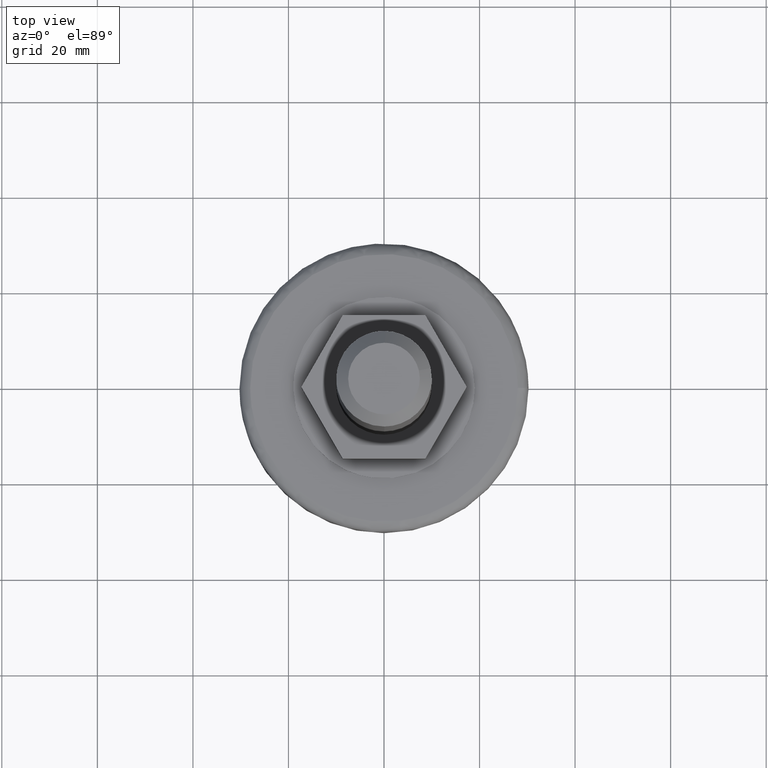
[diagram: clean part render]
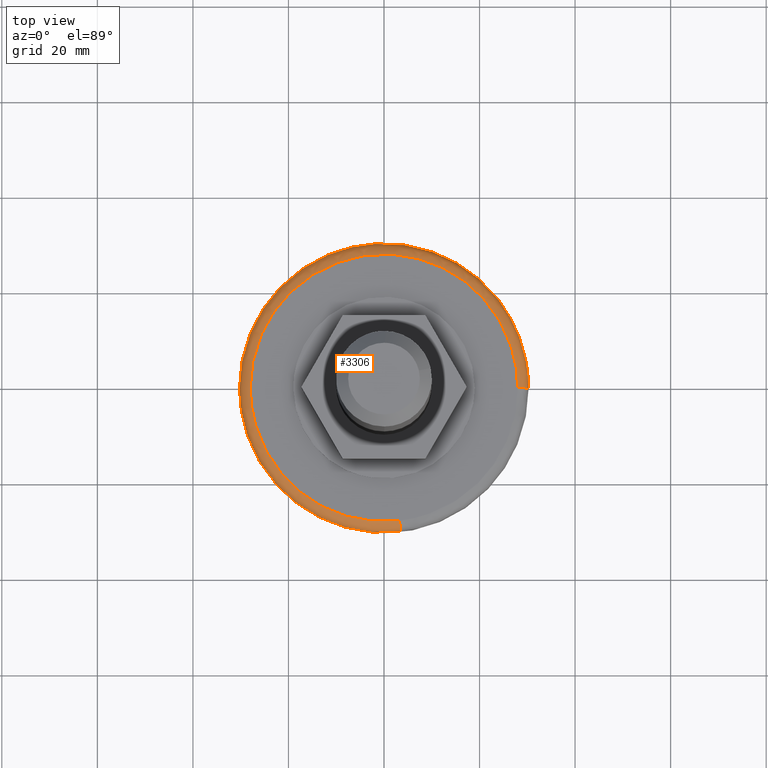
[diagram: same view with one face highlighted and labeled with its STEP entity id]
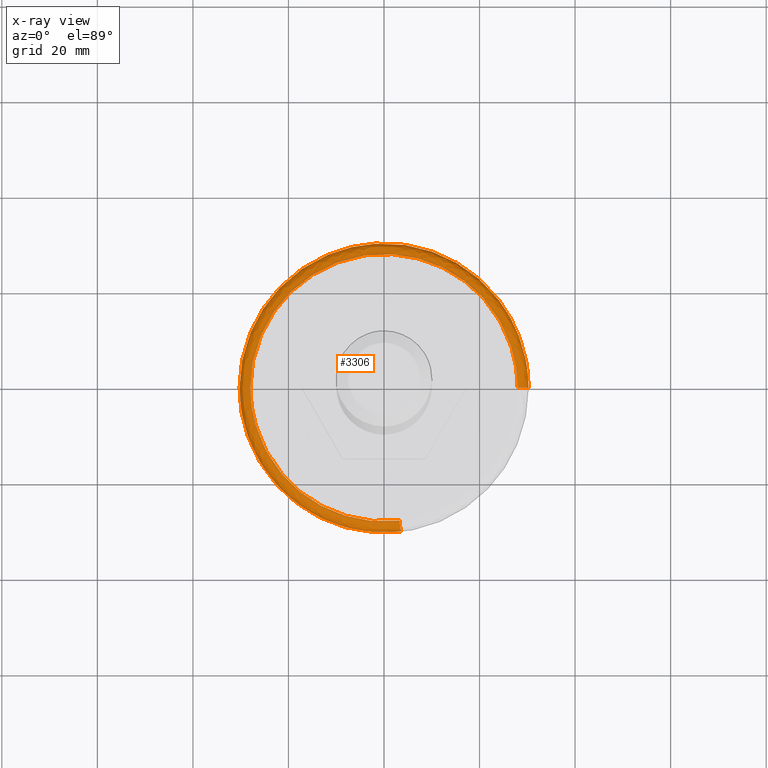
[diagram: x-ray of the same camera — body ghosted, the highlighted face saturated]
A machine part, top view. The second image highlights one B-rep face of the part: STEP entity #3306.
The next image is the same camera in x-ray: the body ghosted, the highlighted face saturated — about 0% of this face is hidden behind the body in this view.
In plain terms, the highlighted face is a freeform B-spline surface patch.
Its self-contained STEP definition (entity closure, byte-faithful):
#2888=CARTESIAN_POINT('',(28.318343763673489,10.636442379029370,13.750000000474850));
#2889=VERTEX_POINT('',#2888);
#2890=CARTESIAN_POINT('',(30.249999999999989,1.731788E-015,13.750000000732349));
#2891=VERTEX_POINT('',#2890);
#2892=CARTESIAN_POINT('',(28.318343763673532,10.636442379029386,13.750000000474841));
#2893=CARTESIAN_POINT('',(30.250000000000000,5.493622685728103,13.750000000599350));
#2894=CARTESIAN_POINT('',(30.249999999999989,1.731788E-015,13.750000000732349));
#2902=(BOUNDED_CURVE()B_SPLINE_CURVE(2,(#2892,#2893,#2894),.UNSPECIFIED.,.F.,.U.)B_SPLINE_CURVE_WITH_KNOTS((3,3),(0.440284178408191,0.500000000000000),.UNSPECIFIED.)CURVE()GEOMETRIC_REPRESENTATION_ITEM()RATIONAL_B_SPLINE_CURVE((0.893499563825345,0.930038563199541,1.0))REPRESENTATION_ITEM(''));
#2903=EDGE_CURVE('',#2889,#2891,#2902,.T.);
#2905=CARTESIAN_POINT('',(3.492792937170363,-30.047677073245652,13.750000000722840));
#2906=VERTEX_POINT('',#2905);
#2920=CARTESIAN_POINT('',(-30.250000000000000,0.0,13.750000000000000));
#2921=VERTEX_POINT('',#2920);
#2922=CARTESIAN_POINT('',(3.492792937170363,-30.047677073245648,13.750000000722842));
#2923=CARTESIAN_POINT('',(1.752256330237426,-30.250000000000004,13.750000000000002));
#2924=CARTESIAN_POINT('',(0.0,-30.250000000000000,13.750000000000000));
#2925=CARTESIAN_POINT('',(-30.250000000000000,-30.250000000000000,13.750000000000000));
#2926=CARTESIAN_POINT('',(-30.250000000000000,0.0,13.750000000000000));
#2934=(BOUNDED_CURVE()B_SPLINE_CURVE(2,(#2922,#2923,#2924,#2925,#2926),.UNSPECIFIED.,.F.,.U.)B_SPLINE_CURVE_WITH_KNOTS((3,2,3),(0.729999999999703,0.750000000000000,1.0),.UNSPECIFIED.)CURVE()GEOMETRIC_REPRESENTATION_ITEM()RATIONAL_B_SPLINE_CURVE((0.956886118190075,0.976568542494576,1.0,0.707106781186547,1.0))REPRESENTATION_ITEM(''));
#2935=EDGE_CURVE('',#2906,#2921,#2934,.T.);
#2937=CARTESIAN_POINT('',(-1.846680851674564,30.193579943932601,13.749999999999680));
#2938=VERTEX_POINT('',#2937);
#2939=CARTESIAN_POINT('',(-30.250000000000000,0.0,13.750000000000000));
#2940=CARTESIAN_POINT('',(-30.249999999999993,28.456393903326983,13.749999999999998));
#2941=CARTESIAN_POINT('',(-1.846680851674565,30.193579943932605,13.749999999999677));
#2949=(BOUNDED_CURVE()B_SPLINE_CURVE(2,(#2939,#2940,#2941),.UNSPECIFIED.,.F.,.U.)B_SPLINE_CURVE_WITH_KNOTS((3,3),(0.0,0.239333176366997),.UNSPECIFIED.)CURVE()GEOMETRIC_REPRESENTATION_ITEM()RATIONAL_B_SPLINE_CURVE((1.0,0.719603742420090,0.976072500584328))REPRESENTATION_ITEM(''));
#2950=EDGE_CURVE('',#2921,#2938,#2949,.T.);
#3028=CARTESIAN_POINT('',(-1.846680851674565,30.193579943932605,13.749999999999677));
#3029=CARTESIAN_POINT('',(-0.924202302626594,30.250000000000000,13.750000000000005));
#3030=CARTESIAN_POINT('',(0.0,30.250000000000000,13.750000000000000));
#3031=CARTESIAN_POINT('',(20.951441333777886,30.249999999999996,13.750000000000005));
#3032=CARTESIAN_POINT('',(28.318343763673532,10.636442379029386,13.750000000474841));
#3040=(BOUNDED_CURVE()B_SPLINE_CURVE(2,(#3028,#3029,#3030,#3031,#3032),.UNSPECIFIED.,.F.,.U.)B_SPLINE_CURVE_WITH_KNOTS((3,2,3),(0.239333176366997,0.250000000000000,0.440284178408191),.UNSPECIFIED.)CURVE()GEOMETRIC_REPRESENTATION_ITEM()RATIONAL_B_SPLINE_CURVE((0.976072500584328,0.987503038766457,1.0,0.777068217987006,0.893499563825345))REPRESENTATION_ITEM(''));
#3041=EDGE_CURVE('',#2938,#2889,#3040,.T.);
#3203=CARTESIAN_POINT('',(3.214978312150193,-27.657730312866832,15.994582733604592));
#3204=CARTESIAN_POINT('',(1.612882917349991,-27.843960415265446,15.994582733604595));
#3205=CARTESIAN_POINT('',(3.409789E-015,-27.843960415265432,15.994582733604592));
#3206=CARTESIAN_POINT('',(-27.843960415265432,-27.843960415265446,15.994582733604600));
#3207=CARTESIAN_POINT('',(-27.843960415265432,-5.114684E-015,15.994582733604592));
#3208=CARTESIAN_POINT('',(-27.843960415265446,27.843960415265432,15.994582733604600));
#3209=CARTESIAN_POINT('',(-6.819578E-015,27.843960415265432,15.994582733604592));
#3210=CARTESIAN_POINT('',(27.843960415265432,27.843960415265464,15.994582733604600));
#3211=CARTESIAN_POINT('',(27.843960415265432,8.524473E-015,15.994582733604592));
#3212=CARTESIAN_POINT('',(3.512985778446626,-30.221421054698023,16.174006212552253));
#3213=CARTESIAN_POINT('',(1.762386616897754,-30.424913469801584,16.174006212552257));
#3214=CARTESIAN_POINT('',(3.725854E-015,-30.424913469801581,16.174006212552250));
#3215=CARTESIAN_POINT('',(-30.424913469801581,-30.424913469801581,16.174006212552253));
#3216=CARTESIAN_POINT('',(-30.424913469801581,-5.588781E-015,16.174006212552250));
#3217=CARTESIAN_POINT('',(-30.424913469801581,30.424913469801581,16.174006212552253));
#3218=CARTESIAN_POINT('',(-7.451708E-015,30.424913469801581,16.174006212552250));
#3219=CARTESIAN_POINT('',(30.424913469801581,30.424913469801581,16.174006212552253));
#3220=CARTESIAN_POINT('',(30.424913469801581,9.314636E-015,16.174006212552250));
#3221=CARTESIAN_POINT('',(3.492157288886980,-30.042238276111945,13.593120480793109));
#3222=CARTESIAN_POINT('',(1.751937428211784,-30.244524184867114,13.593120480793118));
#3223=CARTESIAN_POINT('',(3.703764E-015,-30.244524184867107,13.593120480793104));
#3224=CARTESIAN_POINT('',(-30.244524184867103,-30.244524184867121,13.593120480793109));
#3225=CARTESIAN_POINT('',(-30.244524184867107,-5.555645E-015,13.593120480793104));
#3226=CARTESIAN_POINT('',(-30.244524184867121,30.244524184867103,13.593120480793109));
#3227=CARTESIAN_POINT('',(-7.407527E-015,30.244524184867107,13.593120480793104));
#3228=CARTESIAN_POINT('',(30.244524184867103,30.244524184867121,13.593120480793109));
#3229=CARTESIAN_POINT('',(30.244524184867107,9.259409E-015,13.593120480793104));
#3237=(BOUNDED_SURFACE()B_SPLINE_SURFACE(2,2,((#3203,#3212,#3221),(#3204,#3213,#3222),(#3205,#3214,#3223),(#3206,#3215,#3224),(#3207,#3216,#3225),(#3208,#3217,#3226),(#3209,#3218,#3227),(#3210,#3219,#3228),(#3211,#3220,#3229)),.UNSPECIFIED.,.F.,.F.,.U.)B_SPLINE_SURFACE_WITH_KNOTS((3,2,2,2,3),(3,3),(0.0,4.008857650417546,54.119626069989692,104.230394489561800,154.341162909134000),(0.0,4.100334317062251),.UNSPECIFIED.)GEOMETRIC_REPRESENTATION_ITEM()RATIONAL_B_SPLINE_SURFACE(((0.876475921288750,0.573569858964007,0.871620863215176),(0.894504353985420,0.585367747928220,0.889549431117399),(0.915966769963712,0.599412851286673,0.910892960457230),(0.647686314382879,0.423848891875170,0.644098589274397),(0.915966769963712,0.599412851286673,0.910892960457230),(0.647686314382879,0.423848891875170,0.644098589274397),(0.915966769963712,0.599412851286673,0.910892960457230),(0.647686314382879,0.423848891875170,0.644098589274397),(0.915966769963712,0.599412851286673,0.910892960457230)))REPRESENTATION_ITEM('')SURFACE());
#3238=CARTESIAN_POINT('',(3.232998422134074,-27.812725892610409,16.0));
#3239=VERTEX_POINT('',#3238);
#3240=CARTESIAN_POINT('',(-28.0,0.0,16.0));
#3241=VERTEX_POINT('',#3240);
#3242=CARTESIAN_POINT('',(3.232998422134073,-27.812725892610413,16.0));
#3243=CARTESIAN_POINT('',(1.621923214945406,-28.000000000000007,16.0));
#3244=CARTESIAN_POINT('',(0.0,-28.0,16.0));
#3245=CARTESIAN_POINT('',(-28.000000000000004,-28.000000000000004,16.0));
#3246=CARTESIAN_POINT('',(-28.0,0.0,16.0));
#3254=(BOUNDED_CURVE()B_SPLINE_CURVE(2,(#3242,#3243,#3244,#3245,#3246),.UNSPECIFIED.,.F.,.U.)B_SPLINE_CURVE_WITH_KNOTS((3,2,3),(0.729999999997533,0.750000000000000,1.0),.UNSPECIFIED.)CURVE()GEOMETRIC_REPRESENTATION_ITEM()RATIONAL_B_SPLINE_CURVE((0.956886118185804,0.976568542492034,1.0,0.707106781186547,1.0))REPRESENTATION_ITEM(''));
#3255=EDGE_CURVE('',#3239,#3241,#3254,.T.);
#3256=ORIENTED_EDGE('',*,*,#3255,.T.);
#3257=CARTESIAN_POINT('',(28.000000000965539,2.634884E-016,16.0));
#3258=VERTEX_POINT('',#3257);
#3259=CARTESIAN_POINT('',(-28.0,0.0,16.0));
#3260=CARTESIAN_POINT('',(-28.000000000000004,28.000000000000004,16.0));
#3261=CARTESIAN_POINT('',(0.0,28.0,16.0));
#3262=CARTESIAN_POINT('',(28.000000000000004,28.000000000000004,16.0));
#3263=CARTESIAN_POINT('',(28.000000000965539,2.634884E-016,16.0));
#3271=(BOUNDED_CURVE()B_SPLINE_CURVE(2,(#3259,#3260,#3261,#3262,#3263),.UNSPECIFIED.,.F.,.U.)B_SPLINE_CURVE_WITH_KNOTS((3,2,3),(0.0,0.250000000000000,0.500000000000000),.UNSPECIFIED.)CURVE()GEOMETRIC_REPRESENTATION_ITEM()RATIONAL_B_SPLINE_CURVE((1.0,0.707106781186547,1.0,0.707106781186547,1.0))REPRESENTATION_ITEM(''));
#3272=EDGE_CURVE('',#3241,#3258,#3271,.T.);
#3273=ORIENTED_EDGE('',*,*,#3272,.T.);
#3274=CARTESIAN_POINT('',(28.000000000965528,2.634884E-016,16.000000000000004));
#3275=CARTESIAN_POINT('',(30.249999998535287,2.816352E-015,15.999999998068917));
#3276=CARTESIAN_POINT('',(30.249999999999993,1.731788E-015,13.750000000732351));
#3284=(BOUNDED_CURVE()B_SPLINE_CURVE(2,(#3274,#3275,#3276),.UNSPECIFIED.,.F.,.U.)B_SPLINE_CURVE_WITH_KNOTS((3,3),(-1.736413120183905,-0.276558718685471),.UNSPECIFIED.)CURVE()GEOMETRIC_REPRESENTATION_ITEM()RATIONAL_B_SPLINE_CURVE((0.888510408743872,0.626638727514301,0.883897566902442))REPRESENTATION_ITEM(''));
#3285=EDGE_CURVE('',#3258,#2891,#3284,.T.);
#3286=ORIENTED_EDGE('',*,*,#3285,.T.);
#3287=ORIENTED_EDGE('',*,*,#2903,.F.);
#3288=ORIENTED_EDGE('',*,*,#3041,.F.);
#3289=ORIENTED_EDGE('',*,*,#2950,.F.);
#3290=ORIENTED_EDGE('',*,*,#2935,.F.);
#3291=CARTESIAN_POINT('',(3.232998422134073,-27.812725892610413,16.000000000000004));
#3292=CARTESIAN_POINT('',(3.492792936977064,-30.047677071812714,15.999999986607031));
#3293=CARTESIAN_POINT('',(3.492792937170362,-30.047677073245648,13.750000000722837));
#3301=(BOUNDED_CURVE()B_SPLINE_CURVE(2,(#3291,#3292,#3293),.UNSPECIFIED.,.F.,.U.)B_SPLINE_CURVE_WITH_KNOTS((3,3),(-1.736413114911624,-0.276558718676763),.UNSPECIFIED.)CURVE()GEOMETRIC_REPRESENTATION_ITEM()RATIONAL_B_SPLINE_CURVE((0.850203274184965,0.599621900366635,0.845789311674383))REPRESENTATION_ITEM(''));
#3302=EDGE_CURVE('',#3239,#2906,#3301,.T.);
#3303=ORIENTED_EDGE('',*,*,#3302,.F.);
#3304=EDGE_LOOP('',(#3256,#3273,#3286,#3287,#3288,#3289,#3290,#3303));
#3305=FACE_OUTER_BOUND('',#3304,.T.);
#3306=ADVANCED_FACE('',(#3305),#3237,.T.);